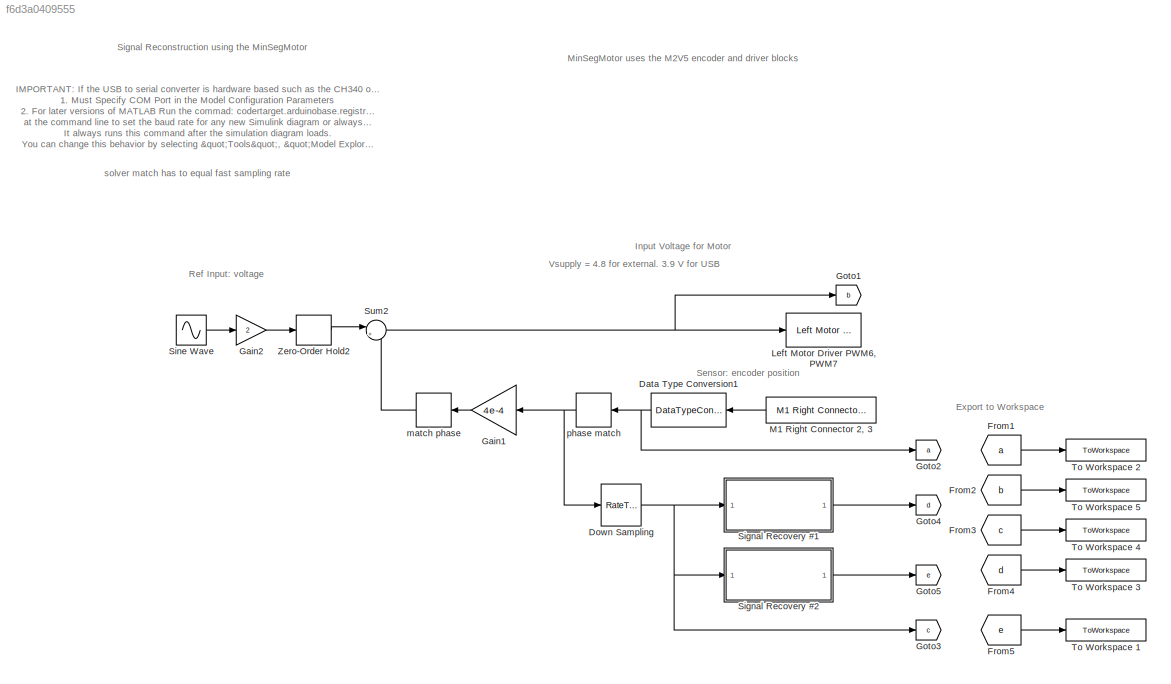
MODEL slx_f6d3a0409555
KIND model
CONFIG AbsTol = auto
CONFIG EnableMultiTasking = on
CONFIG FixedStep = auto
CONFIG MaxStep = auto
CONFIG MinStep = auto
CONFIG PostLoadFcn = try, \ncodertarget.arduinobase.registry.setBaudRate(gcs,115200)\ndisp('baud rate set to 115200 for external mode hardware serial')\nbaudrate='set_to_115200'\ncatch\ndisp('baud rate setting not needed in this version')\nend
CONFIG RelTol = 1e-3
CONFIG SampleTimeConstraint = Unconstrained
CONFIG SolverName = ode45
CONFIG StartTime = 0.0
CONFIG StopTime = 10.0
BLOCK [DataTypeConversion] Data Type Conversion1
  NameLocation = top
  OutDataTypeStr = double
  RndMeth = Nearest
  SaturateOnIntegerOverflow = off
BLOCK [RateTransition] Down Sampling
  OutPortSampleTime = T_ss
BLOCK [From] From1
  GotoTag = a
BLOCK [From] From2
  GotoTag = b
BLOCK [From] From3
  GotoTag = c
BLOCK [From] From4
  GotoTag = d
BLOCK [From] From5
  GotoTag = e
BLOCK [Gain] Gain1
  Gain = 4e-4
  NameLocation = top
BLOCK [Gain] Gain2
  Gain = 2
BLOCK [Goto] Goto1
  GotoTag = b
BLOCK [Goto] Goto2
  GotoTag = a
BLOCK [Goto] Goto3
  GotoTag = c
BLOCK [Goto] Goto4
  GotoTag = d
BLOCK [Goto] Goto5
  GotoTag = e
BLOCK [Reference] Left Motor Driver PWM6, PWM7  REF=MinSegLibrary_M2V5/Left Motor Driver
PWM6, PWM7
  SourceBlock = MinSegLibrary_M2V5/Left Motor Driver\nPWM6, PWM7
  SourceProductName = M2V5 Library
BLOCK [Reference] M1 Right Connector 2, 3  REF=MinSegLibrary_M2V5/M1 Right Connector 2, 3
  NameLocation = top
  SourceBlock = MinSegLibrary_M2V5/M1 Right Connector 2, 3
  SourceProductName = M2V5 Library
  SourceType = Encoder_arduino
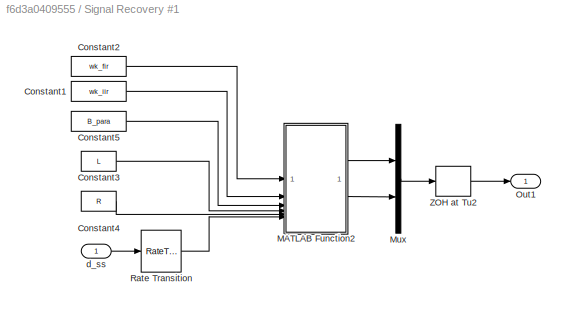
BLOCK [SubSystem] Signal Recovery #1
BLOCK [Constant] Signal Recovery #1/Constant1
  Value = wk_iir
BLOCK [Constant] Signal Recovery #1/Constant2
  Value = wk_fir
BLOCK [Constant] Signal Recovery #1/Constant3
  Value = L
BLOCK [Constant] Signal Recovery #1/Constant4
  Value = R
BLOCK [Constant] Signal Recovery #1/Constant5
  Value = B_para
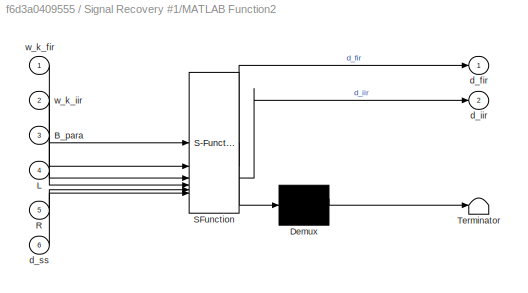
BLOCK [SubSystem] Signal Recovery #1/MATLAB Function2
  ErrorFcn = Stateflow.Translate.translate
  PermitHierarchicalResolution = ExplicitOnly
  SFBlockType = MATLAB Function
  SystemSampleTime = T_cs
  TreatAsAtomicUnit = on
BLOCK [Demux] Signal Recovery #1/MATLAB Function2/ Demux 
  Outputs = 1
BLOCK [S-Function] Signal Recovery #1/MATLAB Function2/ SFunction 
  EnableBusSupport = on
  FunctionName = sf_sfun
  PortCounts = [6 3]
  SFcnIsStateOwnerBlock = off
  SFunctionDeploymentMode = off
  Tag = Stateflow S-Function 1
BLOCK [Terminator] Signal Recovery #1/MATLAB Function2/ Terminator 
BLOCK [Inport] Signal Recovery #1/MATLAB Function2/B_para
  Port = 3
BLOCK [Inport] Signal Recovery #1/MATLAB Function2/L
  Port = 4
BLOCK [Inport] Signal Recovery #1/MATLAB Function2/R
  Port = 5
BLOCK [Outport] Signal Recovery #1/MATLAB Function2/d_fir
BLOCK [Outport] Signal Recovery #1/MATLAB Function2/d_iir
  Port = 2
BLOCK [Inport] Signal Recovery #1/MATLAB Function2/d_ss
  Port = 6
BLOCK [Inport] Signal Recovery #1/MATLAB Function2/w_k_fir
BLOCK [Inport] Signal Recovery #1/MATLAB Function2/w_k_iir
  Port = 2
BLOCK [Mux] Signal Recovery #1/Mux
  DisplayOption = bar
  Inputs = 2
BLOCK [Outport] Signal Recovery #1/Out1
BLOCK [RateTransition] Signal Recovery #1/Rate Transition
  OutPortSampleTime = T_cs
BLOCK [ZeroOrderHold] Signal Recovery #1/ZOH at Tu2
  SampleTime = T_cs
BLOCK [Inport] Signal Recovery #1/d_ss
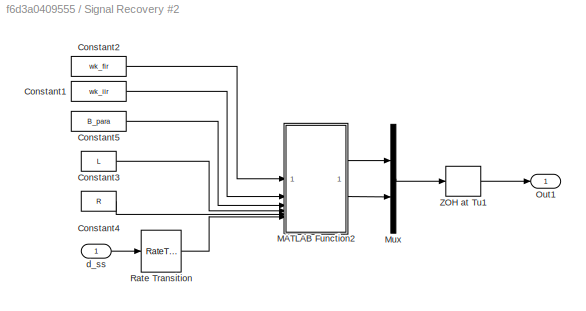
BLOCK [SubSystem] Signal Recovery #2
BLOCK [Constant] Signal Recovery #2/Constant1
  Value = wk_iir
BLOCK [Constant] Signal Recovery #2/Constant2
  Value = wk_fir
BLOCK [Constant] Signal Recovery #2/Constant3
  Value = L
BLOCK [Constant] Signal Recovery #2/Constant4
  Value = R
BLOCK [Constant] Signal Recovery #2/Constant5
  Value = B_para
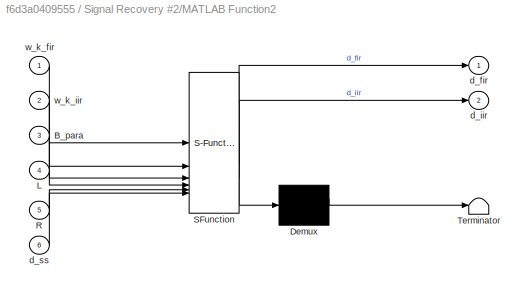
BLOCK [SubSystem] Signal Recovery #2/MATLAB Function2
  ErrorFcn = Stateflow.Translate.translate
  PermitHierarchicalResolution = ExplicitOnly
  SFBlockType = MATLAB Function
  SystemSampleTime = T_cs
  TreatAsAtomicUnit = on
BLOCK [Demux] Signal Recovery #2/MATLAB Function2/ Demux 
  Outputs = 1
BLOCK [S-Function] Signal Recovery #2/MATLAB Function2/ SFunction 
  EnableBusSupport = on
  FunctionName = sf_sfun
  PortCounts = [6 3]
  SFcnIsStateOwnerBlock = off
  SFunctionDeploymentMode = off
  Tag = Stateflow S-Function 3
BLOCK [Terminator] Signal Recovery #2/MATLAB Function2/ Terminator 
BLOCK [Inport] Signal Recovery #2/MATLAB Function2/B_para
  Port = 3
BLOCK [Inport] Signal Recovery #2/MATLAB Function2/L
  Port = 4
BLOCK [Inport] Signal Recovery #2/MATLAB Function2/R
  Port = 5
BLOCK [Outport] Signal Recovery #2/MATLAB Function2/d_fir
BLOCK [Outport] Signal Recovery #2/MATLAB Function2/d_iir
  Port = 2
BLOCK [Inport] Signal Recovery #2/MATLAB Function2/d_ss
  Port = 6
BLOCK [Inport] Signal Recovery #2/MATLAB Function2/w_k_fir
BLOCK [Inport] Signal Recovery #2/MATLAB Function2/w_k_iir
  Port = 2
BLOCK [Mux] Signal Recovery #2/Mux
  DisplayOption = bar
  Inputs = 2
BLOCK [Outport] Signal Recovery #2/Out1
BLOCK [RateTransition] Signal Recovery #2/Rate Transition
  OutPortSampleTime = T_cs
BLOCK [ZeroOrderHold] Signal Recovery #2/ZOH at Tu1
  SampleTime = T_cs
BLOCK [Inport] Signal Recovery #2/d_ss
BLOCK [Sin] Sine Wave
  Frequency = f_in*2*pi
  SampleTime = 0
BLOCK [Sum] Sum2
  Inputs = |+-
BLOCK [ToWorkspace] To Workspace 1
  MaxDataPoints = Inf
  SampleTime = T_cs
  SaveFormat = Structure With Time
  VariableName = out_W2
BLOCK [ToWorkspace] To Workspace 2
  MaxDataPoints = Inf
  SampleTime = -1
  SaveFormat = Structure With Time
  VariableName = out_encoder
BLOCK [ToWorkspace] To Workspace 3
  MaxDataPoints = Inf
  SampleTime = T_cs
  SaveFormat = Structure With Time
  VariableName = out_W1
BLOCK [ToWorkspace] To Workspace 4
  MaxDataPoints = Inf
  SampleTime = -1
  SaveFormat = Structure With Time
  VariableName = in_W
BLOCK [ToWorkspace] To Workspace 5
  MaxDataPoints = Inf
  SampleTime = -1
  SaveFormat = Structure With Time
  VariableName = in_voltage
BLOCK [ZeroOrderHold] Zero-Order Hold2
  SampleTime = T_cs
BLOCK [Delay] match phase
  InputPortMap = u0
  NameLocation = top
BLOCK [Delay] phase match
  DelayLength = 4
  InputPortMap = u0
  NameLocation = top
ANNOTATION (root): solver match has to equal fast sampling rate
ANNOTATION (root): IMPORTANT : If the USB to serial converter is hardware based such as the CH340 or the PL2303 you must: 1. Must Specify COM Port in the Model Configuration Parameters 2. For later versions of MATLAB Run the commad: codertarget.arduinobase.registry.setBaudRate(gcs,115200) at the command line to set the baud rate for any new Simulink diagram or always use this file to start new projects. It always ru...<+147ch>
ANNOTATION (root): Export to Workspace
ANNOTATION (root): Input Voltage for Motor
ANNOTATION (root): MinSegMotor uses the M2V5 encoder and driver blocks
ANNOTATION (root): Ref Input: voltage
ANNOTATION (root): Sensor: encoder position
ANNOTATION (root): Signal Reconstruction using the MinSegMotor
ANNOTATION (root): Vsupply = 4.8 for external. 3.9 V for USB
NET Data Type Conversion1:1 -> Goto2:1, phase match:1
NET Down Sampling:1 -> Goto3:1, Signal Recovery #1:1, Signal Recovery #2:1
LINE From1:1 -> To Workspace 2:1
LINE From2:1 -> To Workspace 5:1
LINE From3:1 -> To Workspace 4:1
LINE From4:1 -> To Workspace 3:1
LINE From5:1 -> To Workspace 1:1
LINE Gain1:1 -> match phase:1
LINE Gain2:1 -> Zero-Order Hold2:1
LINE M1 Right Connector 2, 3:1 -> Data Type Conversion1:1
LINE Signal Recovery #1/Constant1:1 -> Signal Recovery #1/MATLAB Function2:2
LINE Signal Recovery #1/Constant2:1 -> Signal Recovery #1/MATLAB Function2:1
LINE Signal Recovery #1/Constant3:1 -> Signal Recovery #1/MATLAB Function2:4
LINE Signal Recovery #1/Constant4:1 -> Signal Recovery #1/MATLAB Function2:5
LINE Signal Recovery #1/Constant5:1 -> Signal Recovery #1/MATLAB Function2:3
LINE Signal Recovery #1/MATLAB Function2:1 -> Signal Recovery #1/Mux:1
LINE Signal Recovery #1/MATLAB Function2:2 -> Signal Recovery #1/Mux:2
LINE Signal Recovery #1/Mux:1 -> Signal Recovery #1/ZOH at Tu2:1
LINE Signal Recovery #1/Rate Transition:1 -> Signal Recovery #1/MATLAB Function2:6
LINE Signal Recovery #1/ZOH at Tu2:1 -> Signal Recovery #1/Out1:1
LINE Signal Recovery #1/d_ss:1 -> Signal Recovery #1/Rate Transition:1
LINE Signal Recovery #1:1 -> Goto4:1
LINE Signal Recovery #2/Constant1:1 -> Signal Recovery #2/MATLAB Function2:2
LINE Signal Recovery #2/Constant2:1 -> Signal Recovery #2/MATLAB Function2:1
LINE Signal Recovery #2/Constant3:1 -> Signal Recovery #2/MATLAB Function2:4
LINE Signal Recovery #2/Constant4:1 -> Signal Recovery #2/MATLAB Function2:5
LINE Signal Recovery #2/Constant5:1 -> Signal Recovery #2/MATLAB Function2:3
LINE Signal Recovery #2/MATLAB Function2:1 -> Signal Recovery #2/Mux:1
LINE Signal Recovery #2/MATLAB Function2:2 -> Signal Recovery #2/Mux:2
LINE Signal Recovery #2/Mux:1 -> Signal Recovery #2/ZOH at Tu1:1
LINE Signal Recovery #2/Rate Transition:1 -> Signal Recovery #2/MATLAB Function2:6
LINE Signal Recovery #2/ZOH at Tu1:1 -> Signal Recovery #2/Out1:1
LINE Signal Recovery #2/d_ss:1 -> Signal Recovery #2/Rate Transition:1
LINE Signal Recovery #2:1 -> Goto5:1
LINE Sine Wave:1 -> Gain2:1
NET Sum2:1 -> Goto1:1, Left Motor Driver PWM6, PWM7:1
LINE Zero-Order Hold2:1 -> Sum2:1
LINE match phase:1 -> Sum2:2
NET phase match:1 -> Down Sampling:1, Gain1:1
note: NET lines group one-source signal fan-out (src -> all destinations, sorted); 1:1 wires keep LINE
CHART Signal Recovery #1/MATLAB Function2 states=1 transitions=1
  STATE_LABEL 'eML_blk_kernel()'
  STATE_LABEL "SCRIPT:\nfunction [d_fir, d_iir] = fcn(w_k_fir, w_k_iir, B_para, L, R, d_ss)\n    % Keeps data of variables\n    persistent  n_w phi n_cs n_ss d_buff d_fs_fir d_fs_iir max_buffer_size buffer_indices\n    RL = R*L;\n    % Assigning initial values   \n    if isempty(n_w)\n        n_w = size(w_k_fir,1); % n_w = 2m disturbances (index starts at 0,1,...,2m-1)\n        phi = zeros(1, n_w, 'like', d_ss); % Preal...<+2311ch>"
CHART Signal Recovery #2/MATLAB Function2 states=1 transitions=1
  STATE_LABEL 'eML_blk_kernel()'
  STATE_LABEL "SCRIPT:\nfunction [d_fir, d_iir] = fcn(w_k_fir, w_k_iir, B_para, L, R, d_ss)\n    % Keeps data of variables\n    persistent  n_w phi n_cs n_ss d_buff d_fs_fir d_fs_iir max_buffer_size buffer_indices\n    RL = R*L; \n    % Assigning initial values   \n    if isempty(n_w)\n        n_w = size(w_k_fir,1); % n_w = 2m disturbances (index starts at 0,1,...,2m-1)\n        phi = zeros(1, n_w, 'like', d_ss); % Prea...<+2306ch>"
CHART  states=0 transitions=0
CHART  states=0 transitions=0
